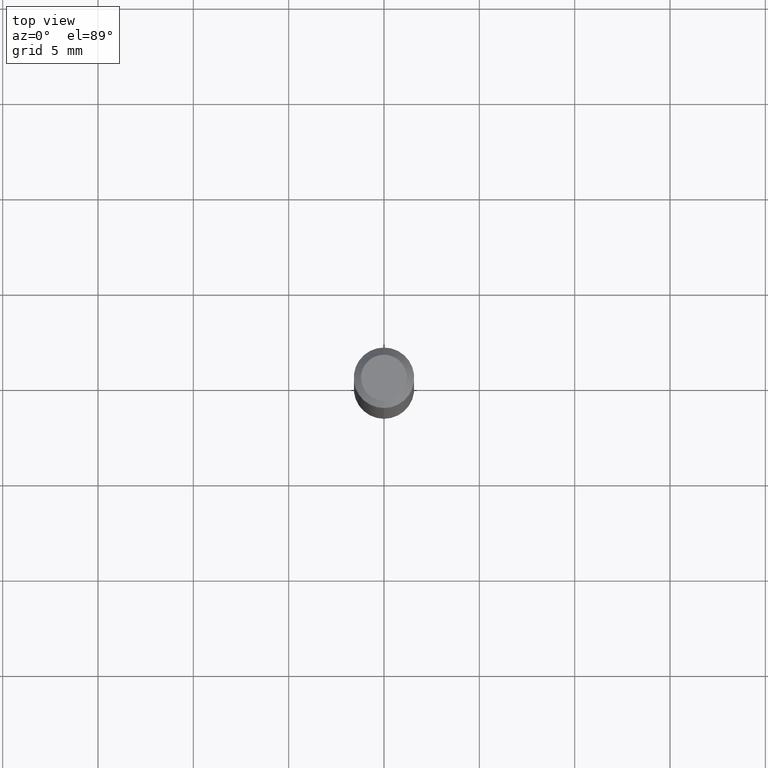
[diagram: clean part render]
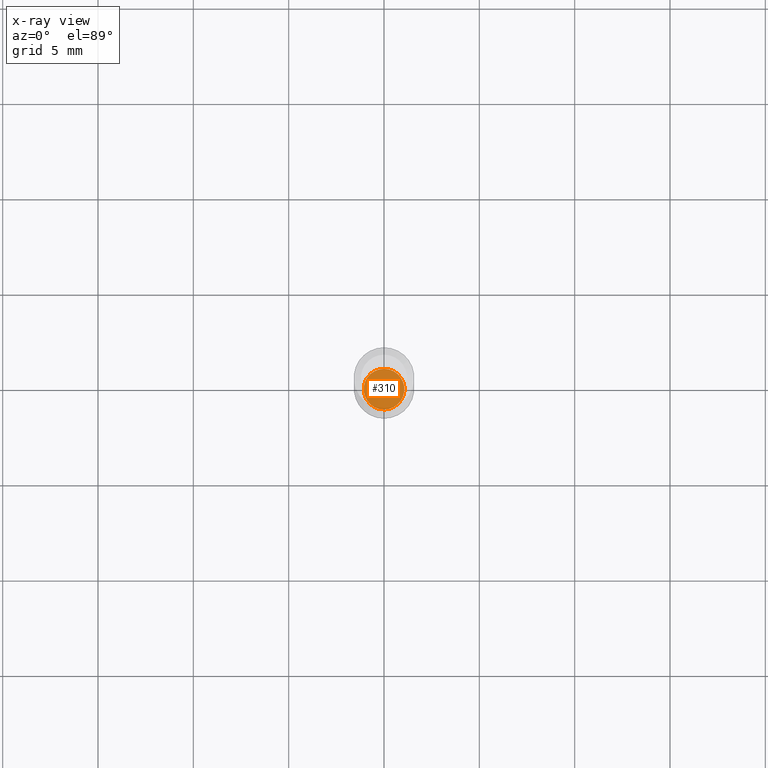
[diagram: x-ray — body ghosted, one internal face saturated and labeled with its STEP entity id]
A machine part, top view, then the same camera in x-ray: the body is ghosted and one INTERNAL B-rep face — a face not visible from any outside direction — is saturated and labeled: STEP entity #310.
In plain terms, the highlighted planar face has unit normal (-0, 0, 1).
Its self-contained STEP definition (entity closure, byte-faithful):
#5 = DIRECTION ( 'NONE',  ( -2.445394468719780989E-29, 3.491587794324560733E-15, 1.000000000000000000 ) ) ;
#12 = ORIENTED_EDGE ( 'NONE', *, *, #121, .F. ) ;
#18 = CARTESIAN_POINT ( 'NONE',  ( 3.355081211083539428E-29, -4.790458453813298029E-15, -1.372000000000000108 ) ) ;
#33 = DIRECTION ( 'NONE',  ( -6.982962677686265922E-15, -1.000000000000000000, 6.504399984914913214E-15 ) ) ;
#39 = DIRECTION ( 'NONE',  ( -6.982962677686265922E-15, -1.000000000000000000, 6.504399984914913214E-15 ) ) ;
#55 = FACE_OUTER_BOUND ( 'NONE', #504, .T. ) ;
#70 = AXIS2_PLACEMENT_3D ( 'NONE', #18, #271, #463 ) ;
#121 = EDGE_CURVE ( 'NONE', #301, #385, #344, .T. ) ;
#136 = AXIS2_PLACEMENT_3D ( 'NONE', #389, #5, #39 ) ;
#194 = ORIENTED_EDGE ( 'NONE', *, *, #418, .F. ) ;
#271 = DIRECTION ( 'NONE',  ( -2.445394468719780429E-29, 3.491587794324560733E-15, 1.000000000000000000 ) ) ;
#301 = VERTEX_POINT ( 'NONE', #445 ) ;
#310 = ADVANCED_FACE ( 'NONE', ( #55 ), #372, .F. ) ;
#325 = CIRCLE ( 'NONE', #493, 0.04199999999999999567 ) ;
#344 = CIRCLE ( 'NONE', #136, 0.04199999999999999567 ) ;
#372 = PLANE ( 'NONE',  #70 ) ;
#385 = VERTEX_POINT ( 'NONE', #432 ) ;
#389 = CARTESIAN_POINT ( 'NONE',  ( 3.355081211083539428E-29, -4.790458453813298029E-15, -1.372000000000000108 ) ) ;
#418 = EDGE_CURVE ( 'NONE', #385, #301, #325, .T. ) ;
#432 = CARTESIAN_POINT ( 'NONE',  ( 3.002043058586754808E-16, 0.04199999999999520783, -1.372000000000000330 ) ) ;
#445 = CARTESIAN_POINT ( 'NONE',  ( -2.932844324627895747E-16, -0.04200000000000478351, -1.371999999999999664 ) ) ;
#463 = DIRECTION ( 'NONE',  ( -6.982962677686265922E-15, -1.000000000000000000, 3.491587794324560733E-15 ) ) ;
#465 = CARTESIAN_POINT ( 'NONE',  ( 3.355081211083539428E-29, -4.790458453813298029E-15, -1.372000000000000108 ) ) ;
#493 = AXIS2_PLACEMENT_3D ( 'NONE', #465, #507, #33 ) ;
#504 = EDGE_LOOP ( 'NONE', ( #12, #194 ) ) ;
#507 = DIRECTION ( 'NONE',  ( -2.445394468719780989E-29, 3.491587794324560733E-15, 1.000000000000000000 ) ) ;